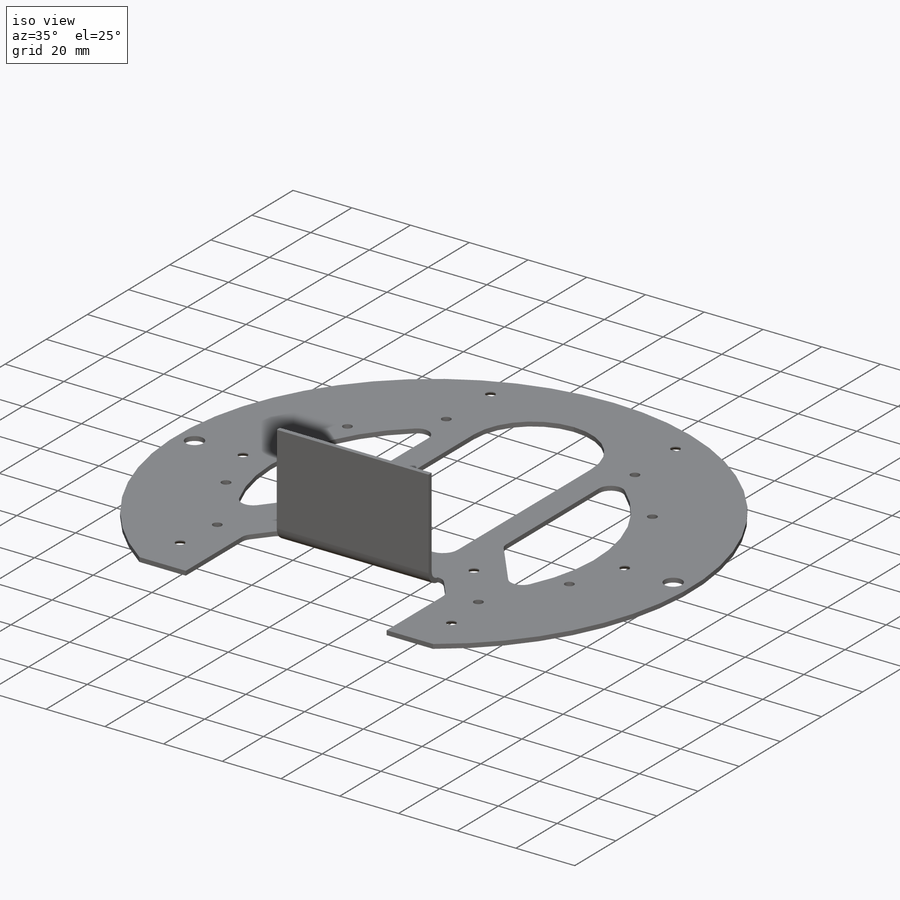
[diagram: iso view]
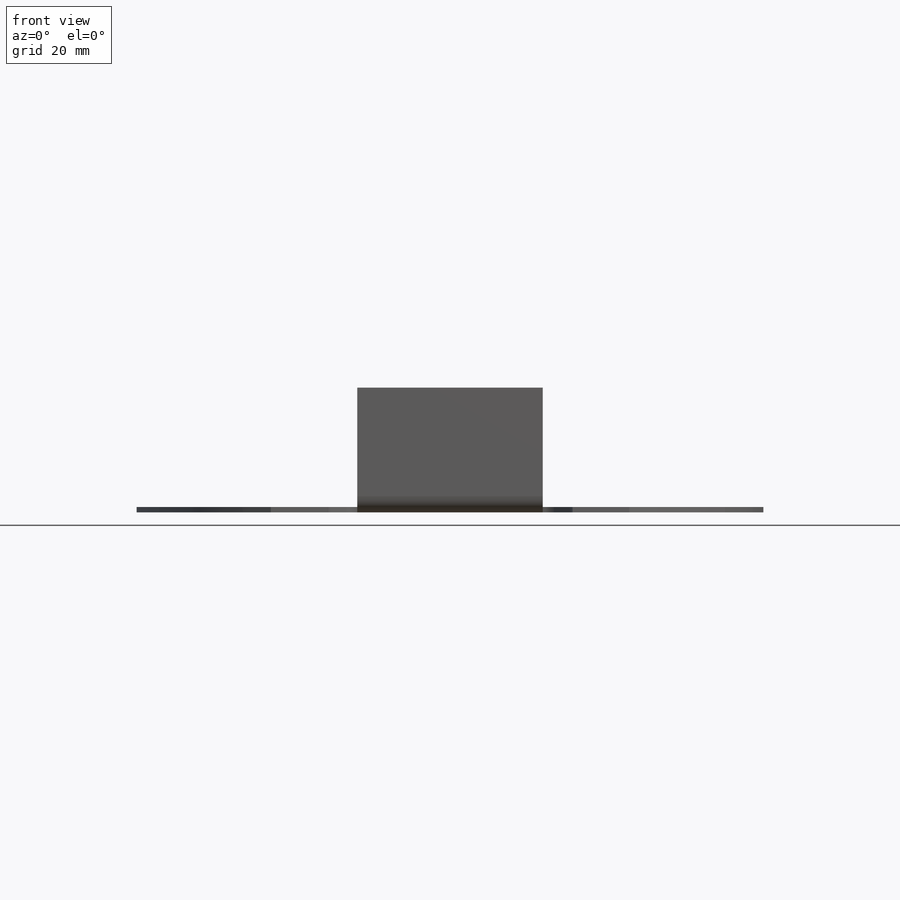
[diagram: front view]
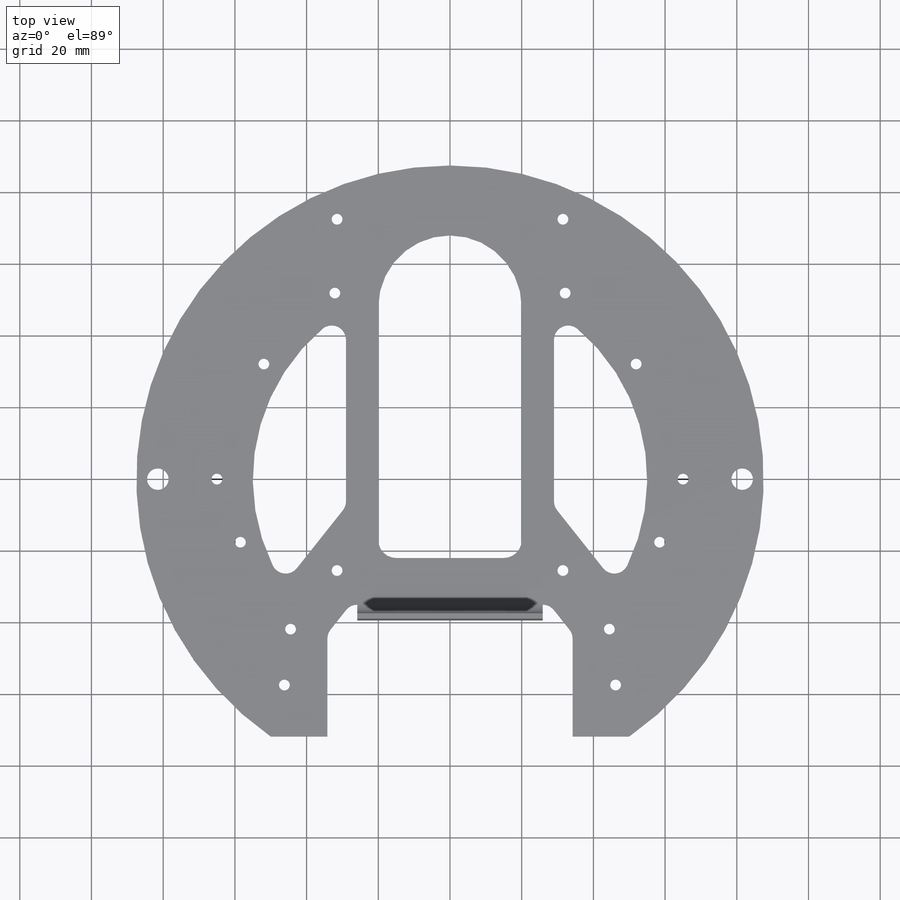
[diagram: top view]
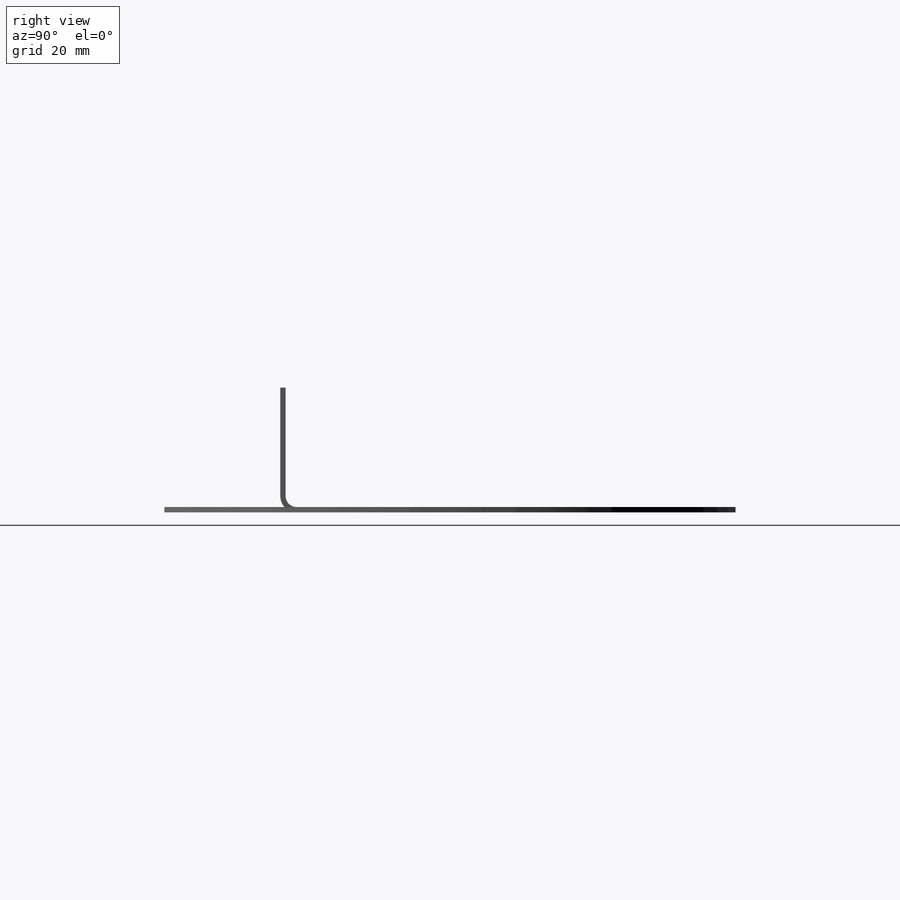
[diagram: right view]
SOLIDWORKS PART (.sldprt)
format: sldprt  version: not decoded by parser v0  size: 1,104,384 bytes
history: native  units: mm
features: sketch x11, cut_extrude x6, plane x3, fillet x3, extrude x2, chamfer x2, material x1, sheet_metal_op x1 + 2 further entries (+9 scaffold rows collapsed)
feature tree (40):
  scaffold x9  (default folders/planes/origin — collapsed)
  material  "Material <não especificado>"
  plane  "Plano frontal"
  plane  "Plano superior"
  plane  "Plano direito"
  sketch  "Esboço1"  dims[D1=175.0mm D2=110.0mm D3=100.0mm D4=34.2mm]
  extrude  "Ressalto-extrusão1"  Depth=1.5mm
  sketch  "Esboço2"  dims[D1=3.0mm]
  cut_extrude  "Corte-extrusão1"  [1 undecoded]
  sketch  "Esboço3"  dims[D1=6.0mm D2=6.0mm D3=6.0mm]
  cut_extrude  "Corte-extrusão2"  [1 undecoded]
  sketch  "Esboço4"  dims[D3=3.0mm D1=10.0mm D2=10.0mm D4=10.0mm]
  cut_extrude  "Corte-extrusão3"  [1 undecoded]
  sketch  "Esboço5"  dims[D2=3.0mm D1=12.0mm]
  cut_extrude  "Corte-extrusão4"  [1 undecoded]
  sketch  "Esboço6"  dims[c1.D2=58.0mm c1.D3=35.0mm c1.D4=18.0mm c1.D1=0.0mm c2.D4=15.0mm]
  extrude  "Ressalto-extrusão2"  [1 undecoded]
  fillet  "Filete1"  Radius=4mm
  sketch  "Esboço8"  dims[D1=22.0mm D2=68.0mm D3=40.0mm]
  cut_extrude  "Corte-extrusão5"  [1 undecoded]
  fillet  "Filete2"  Radius=20mm
  fillet  "Filete3"  Radius=5mm
  sketch  "Esboço9"  dims[D2=3.0mm D3=6.0mm D6=3.0mm D1=15.0mm D4=63.0mm D5=98.0mm]
  cut_extrude  "Corte-extrusão6"  [1 undecoded]
  sheet_metal_op  "Chapa metálica1"
  sketch  "Esboço14"  dims[c1.D1=3.0mm c1.D4=90.0deg c1.D5=1.0 c1.D8=0.75mm c1.D9=0.75mm c2.D1=3.0mm c2.D2=500.0mm c2.D3=0.0mm c2.D6=10.0mm c2.D7=33.31mm]
  chamfer  "Chanfro2"  Distance=1.2mm
  chamfer  "Chanfro4"  Distance=1.2mm
  "Padrão-Plano1"
  sketch  "Curva-Linhas1"
  sketch  "Caixa delimitadora1"
  "Transformação de esboço1"
decode coverage: 15 of 25 modeling features carry decoded parameters; 2 rows unclassified (native names shown)
note: 7 parameter values undecoded
summary: no parameter record found for 7 features
note: suppression state not decoded; provenance and decode notes live in map.json
